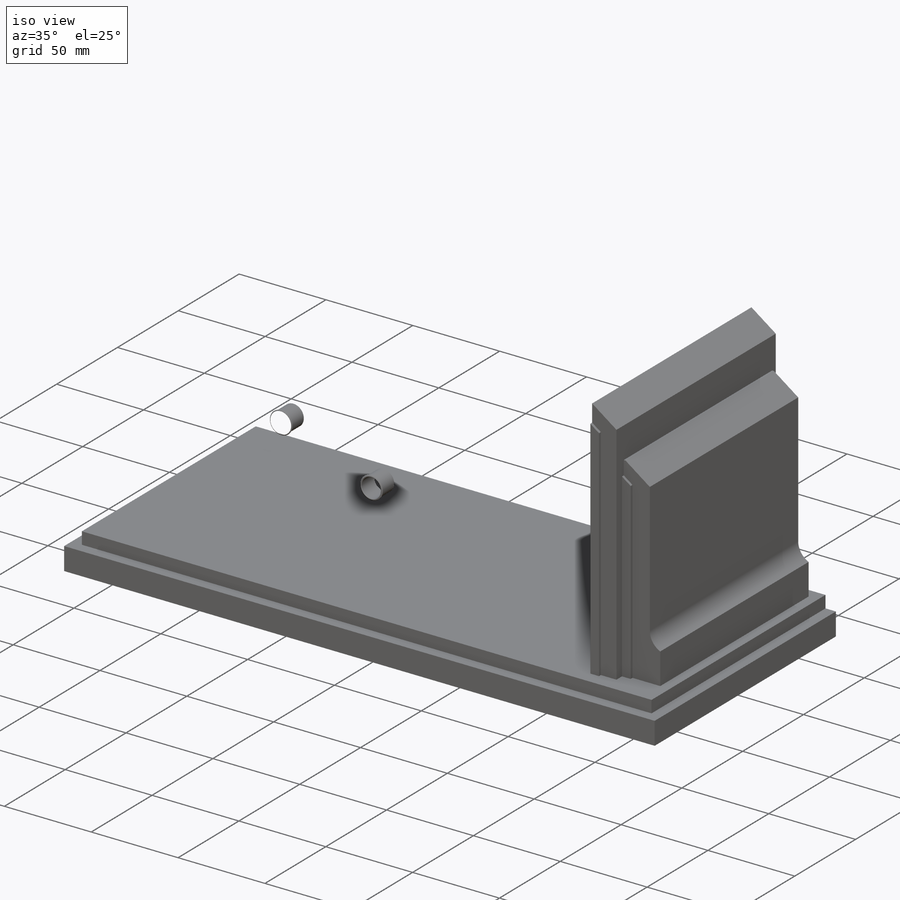
[diagram: iso view]
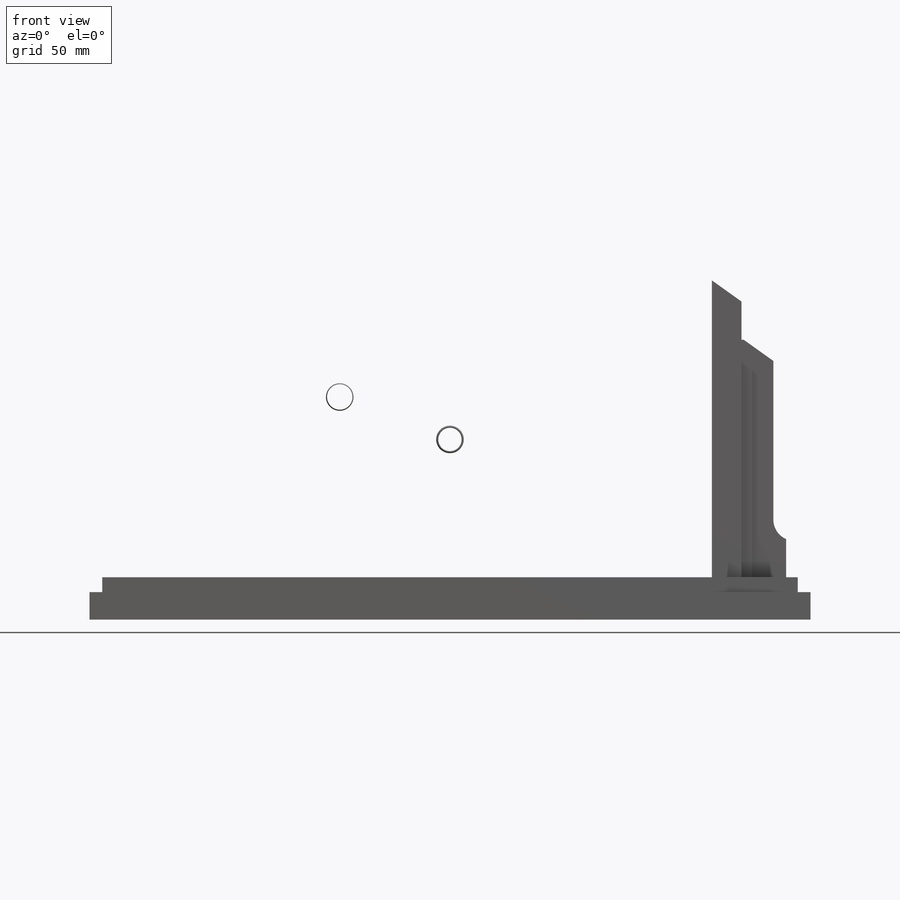
[diagram: front view]
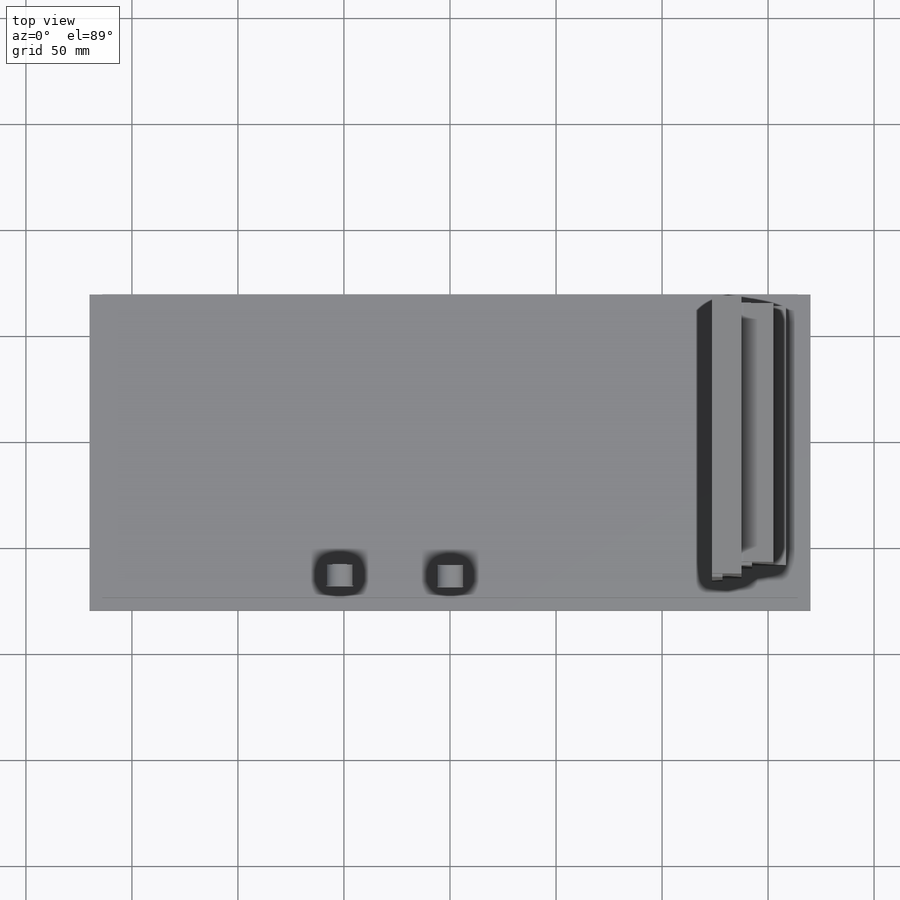
[diagram: top view]
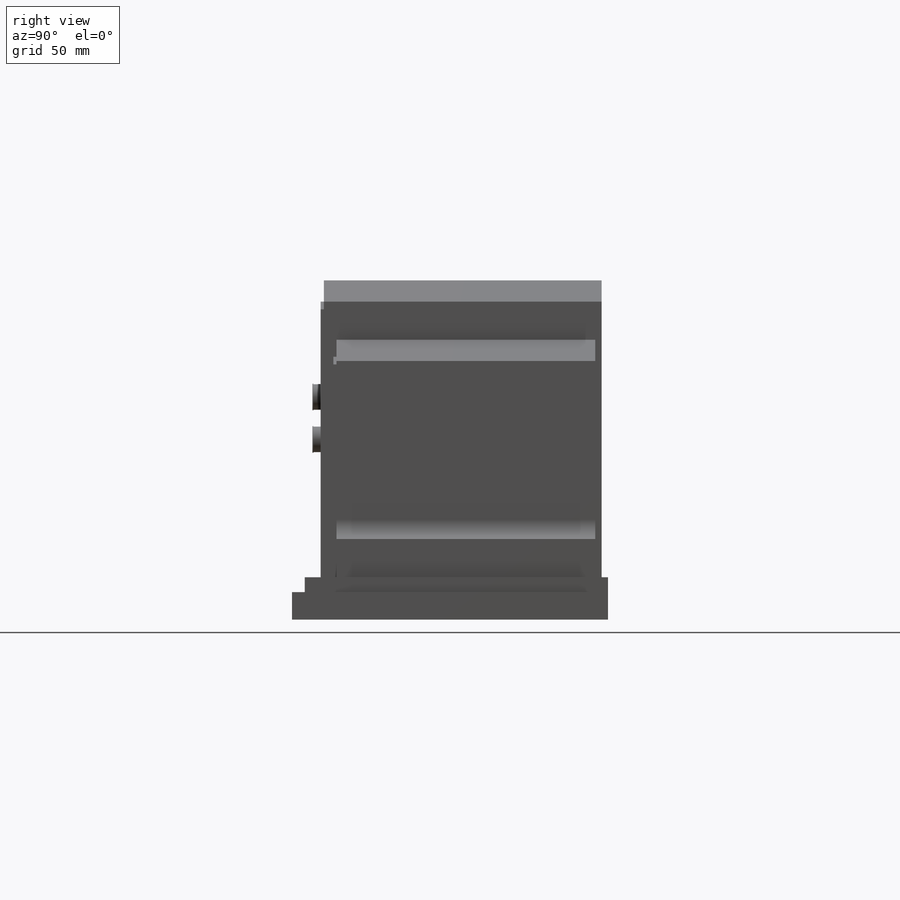
[diagram: right view]
SOLIDWORKS PART (.sldprt)
format: sldprt  version: not decoded by parser v0  size: 7,306,752 bytes
history: native  units: mm
features: sketch x43, extrude x18, fillet x8, plane x8, cut_extrude x7, chamfer x4, revolve x4, sweep x2, mirror x2, material x1, move_body x1, hole x1, dome x1, helix x1 + 3 further entries (+11 scaffold rows collapsed)
feature tree (115):
  scaffold x11  (default folders/planes/origin — collapsed)
  material  "Material <not specified>"
  sketch  "Sketch1"  dims[D1=139.0mm D2=320.0mm]
  extrude  "Boss-Extrude1"  Depth=20mm
  sketch  "Sketch3"  dims[c1.D1=340.0mm c1.D2=13.0mm c1.D3=334.0mm c1.D4=6.0mm c2.D3=4.0mm c2.D4=17.0mm c2.D1=6.0mm]
  sweep  "Sweep1"
  sketch  "Sketch5"  dims[D1=247.0mm D2=213.0mm]
  extrude  "Boss-Extrude3"  [1 undecoded]
  chamfer  "Chamfer1"  Distance=14mm Angle=45deg
  sketch  "Sketch6"  dims[c1.D1=14.0mm c1.D2=140.0mm c1.D3=10.0mm c2.D2=140.0mm c2.D3=130.0mm]
  extrude  "Boss-Extrude4"  Depth=131mm
  sketch  "Sketch7"  dims[D1=21.0mm D2=112.0mm D3=10.0mm D4=15.0mm D5=38.0mm D6=1.0mm]
  extrude  "Boss-Extrude5"  Depth=122mm
  fillet  "Fillet1"  Radius=10mm
  sketch  "Sketch8"  dims[D1=5.0mm D2=10.0mm]
  extrude  "Boss-Extrude6"  Depth=1.5mm
  sketch  "Sketch9"  dims[c1.D1=8.0mm c1.D2=5.0mm c1.D3=8.0mm c2.D1=8.0mm c2.D3=~6.144518mm]
  extrude  "Boss-Extrude7"  Depth=1.5mm
  sketch  "Sketch10"  dims[D1=31.0mm D2=27.0mm D3=133.0mm D4=17.0mm D5=17.0mm D6=17.0mm D7=17.0mm]
  extrude  "Boss-Extrude8"  Depth=1mm
  sketch  "Sketch11"  dims[D2=6.0mm D1=23.0mm D3=8.0mm]
  cut_extrude  "Cut-Extrude1"  Depth=5mm
  sketch  "Sketch12"  dims[D1=12.0mm D2=85.0mm D3=52.0mm D4=52.0mm D5=20.0mm]
  cut_extrude  "Cut-Extrude2"  Depth=10mm
  sketch  "Sketch13"  dims[D4=0.35mm D1=0.5mm D2=1.0mm D3=0.5mm]
  revolve  "Revolve1"  Angle=360deg
  sketch  "Sketch15"  dims[D1=7.0mm]
  extrude  "Boss-Extrude9"  Depth=4mm
  sketch  "Sketch16"  dims[D1=0.5mm]
  plane  "Plane1"
  sketch  "Sketch17"  dims[D1=0.5mm]
  fillet  "Fillet3"  Radius=0.5mm
  fillet  "Fillet4"  Radius=0.25mm
  sketch  "Sketch14"
  "Sketch-Pattern1"
  mirror  "Mirror1"
  sketch  "Sketch18"  dims[D1=66.0mm D2=1.0mm D3=15.0mm]
  extrude  "Boss-Extrude10"  Depth=1mm
  chamfer  "Chamfer2"  Distance=1mm Angle=45deg
  sketch  "Sketch19"  dims[D1=3.0mm D2=4.0mm]
  extrude  "Boss-Extrude11"  Depth=1mm
  fillet  "Fillet5"  Radius=0.75mm
  sketch  "Sketch20"  dims[D1=0.5mm]
  cut_extrude  "Cut-Extrude3"  Depth=0.5mm
  move_body  "Body-Move/Copy2"
  mirror  "Mirror2"
  sketch  "Sketch21"  dims[D1=210.0mm D2=160.0mm D3=7.0mm D4=7.0mm]
  extrude  "Boss-Extrude12"  Depth=9mm
  chamfer  "Chamfer3"  Distance=2mm
  sketch  "Sketch22"  dims[D1=3.0mm D2=3.0mm]
  extrude  "Boss-Extrude13"  Depth=5mm
  chamfer  "Chamfer4"  Distance=5mm
  plane  "Plane2"
  sketch  "Sketch23"  dims[D1=2.0mm D2=2.0mm D3=2.0mm D4=2.0mm]
  plane  "Plane3"
  sketch  "Sketch26"  dims[D1=1.0mm]
  sweep  "Cut-Sweep1"
  sketch  "Sketch27"  dims[D1=13.0mm]
  sketch  "Sketch28"  dims[D1=13.0mm]
  sketch  "Sketch29"  dims[c1.D1=0.0mm c2.D1=1.0mm]
  sketch  "Sketch32"  dims[D1=5.0mm]
  extrude  "Boss-Extrude15"  Depth=1mm
  plane  "Plane5"
  sketch  "Sketch33"  dims[c1.D3=~0.890365mm c1.D4=0.1mm c1.D2=~1.315464mm c1.D1=5.0mm c2.D2=2.0mm c2.D3=1.0mm c2.D5=1.0mm c3.D2=7.0mm c3.D3=2.5mm]
  revolve  "Revolve2"  Angle=360deg
  sketch  "Sketch34"  dims[D1=312.0mm D2=122.0mm]
  plane  "Plane6"
  sketch  "Sketch35"  dims[D1=9.0mm D2=24.0mm]
  revolve  "Revolve3"  Angle=360deg
  "Sketch-Pattern2"
  hole  "CSK for M2 Flat Head Machine Screw1"  Diameter=2.4mm Depth=5mm
  sketch  "Sketch38"  dims[D1=5.0mm D2=5.0mm]
  sketch  "Sketch39"  dims[hole-wizard template sketch: 39 standard entries collapsed; hole parameters kept: c13.Hole Dia.=2.4mm c13.Hole Depth=5.0mm c13.Near C'Sink Dia.=4.4mm c13.D4=~33.297463mm c13.Near C'Sink Angle=90.0deg c14.D5=~14.816244mm c14.Drill Angle=118.0deg]
  sketch  "Sketch40"
  plane  "Plane7"  Offset=5mm
  sketch  "Sketch41"  dims[D1=0.25mm]
  revolve  "Revolve4"  Angle=360deg
  sketch  "Sketch42"  dims[D1=0.5mm]
  cut_extrude  "Cut-Extrude5"  Depth=1mm
  "Sketch-Pattern3"
  fillet  "Fillet6"  Radius=0.5mm
  fillet  "Fillet7"  Radius=0.5mm
  fillet  "Fillet8"  Radius=0.5mm
  fillet  "Fillet9"  Radius=0.5mm
  sketch  "Sketch43"  dims[D1=2.0mm D2=14.0mm D3=2.0mm]
  cut_extrude  "Cut-Extrude6"  Depth=7mm
  sketch  "Sketch44"  dims[D2=4.0mm D1=6.0mm]
  extrude  "Boss-Extrude16"  Depth=1mm
  sketch  "Sketch45"  dims[D1=1.5mm]
  extrude  "Boss-Extrude17"  Depth=7mm
  dome  "Dome1"
  plane  "Plane8"  Offset=2mm
  sketch  "Sketch46"  dims[c1.D1=12.0mm c1.D4=15.0mm c1.D6=~10.472744mm c1.D9=5.5mm c1.D10=12.0mm c1.D2=~57.595337mm c2.D2=30.0deg c2.D3=50.0mm c2.D5=19.0mm c2.D6=2.5mm c2.D7=2.5mm c2.D8=10.0mm c2.D10=2.0mm c2.D11=2.75mm]
  extrude  "Boss-Extrude18"  Depth=0.75mm
  plane  "Plane9"  Offset=2mm
  sketch  "Sketch47"  dims[D1=7.0mm]
  extrude  "Boss-Extrude19"  Depth=1.5mm
  sketch  "Sketch49"  dims[c1.D1=11.0mm c1.D6=5.5mm c1.D2=68.0mm c1.D3=~62.838907mm c2.D3=70.0deg c2.D4=2.5mm c2.D5=17.0mm c2.D7=15.0mm c2.D8=4.0mm c2.D9=1.5mm]
  extrude  "Boss-Extrude20"  Depth=0.75mm
  sketch  "Sketch48"
  cut_extrude  "Cut-Extrude7"  [1 undecoded]
  sketch  "Sketch51"  dims[D2=2.5mm D3=2.5mm D1=5.0]
  cut_extrude  "Cut-Extrude8"  Depth=0.5mm
  sketch  "Sketch52"
  helix  "Helix/Spiral1"  Pitch=500mm
decode coverage: 80 of 92 modeling features carry decoded parameters; 3 rows unclassified (native names shown)
note: ~ marks probable driven/reference dimensions
note: 2 parameter values undecoded
note: suppression state not decoded; provenance and decode notes live in map.json
